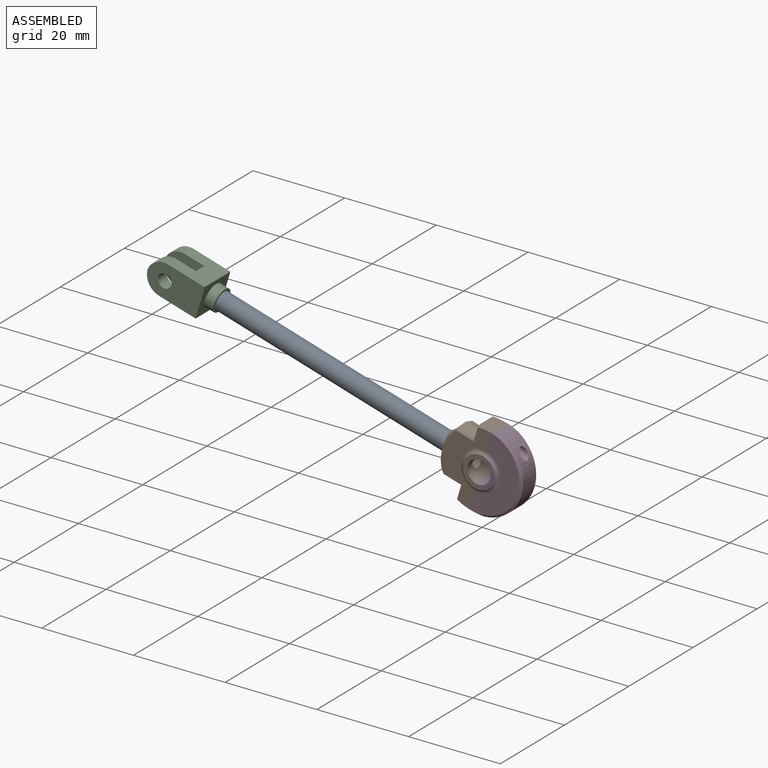
[diagram: assembled view]
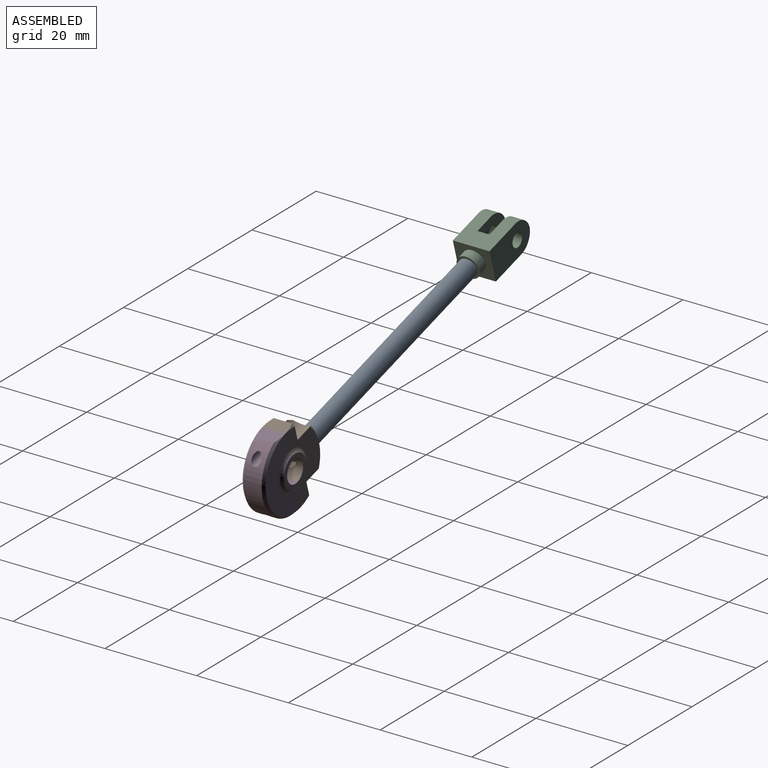
[diagram: assembled view, second angle]
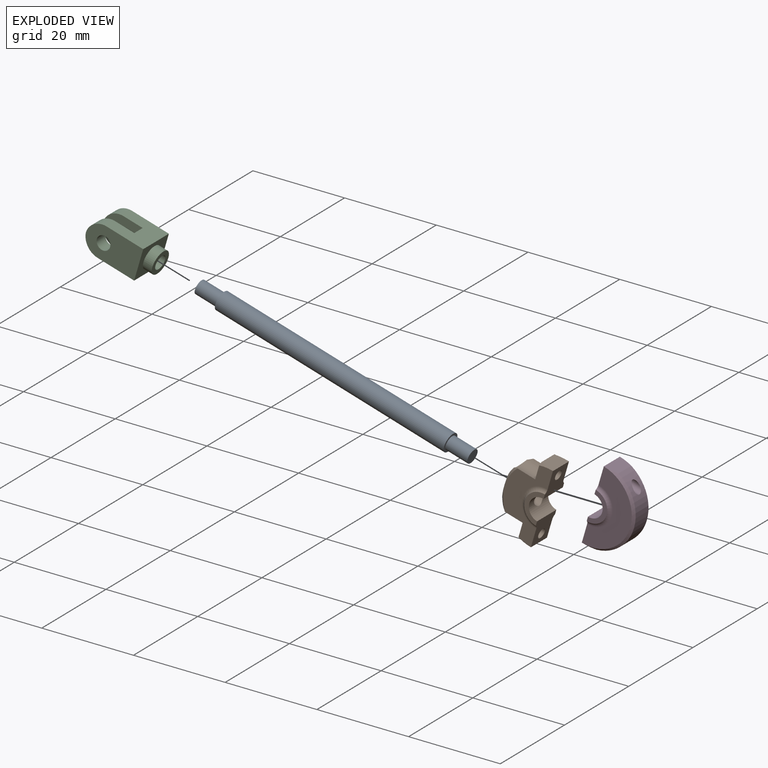
[diagram: exploded view]
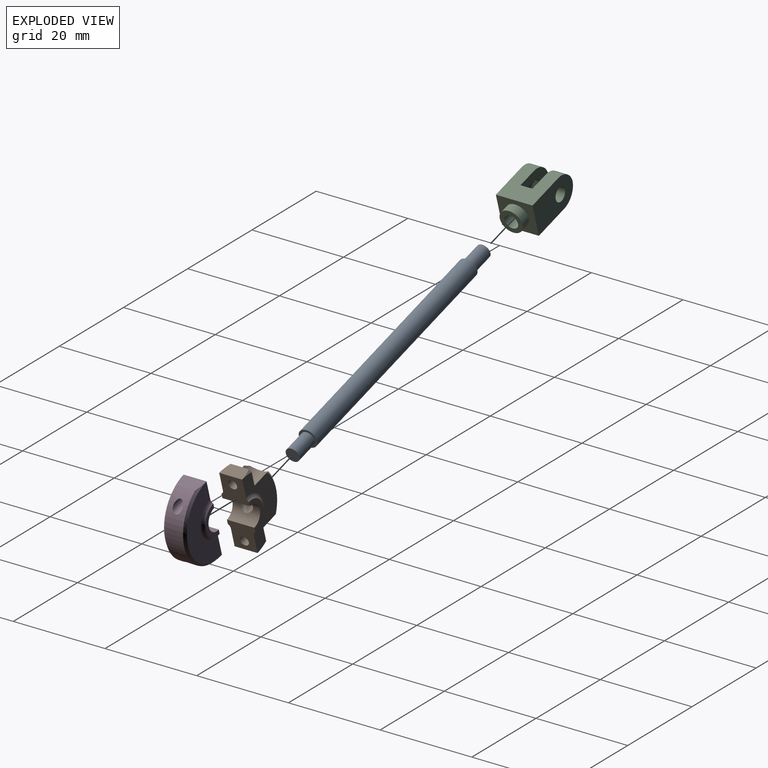
[diagram: exploded view, second angle]
ASSEMBLY  parts=4 mates=3
PART A: 7 faces, bbox 62x4x4 mm
  f0: cylinder r=1.5mm len=5mm, axis (-1,0,0), area 47.1mm2, adj f1,f4
  f1: plane 3x3mm, normal (1,0,0), area 7.1mm2, adj f0
  f2: cylinder r=2mm len=52mm, axis (1,0,0), area 653.5mm2, adj f3,f4
  f3: plane 4x4mm, normal (-1,0,0), area 5.5mm2, adj f2,f5
  f4: plane 4x4mm, normal (1,0,0), area 5.5mm2, adj f0,f2
  f5: cylinder r=1.5mm len=5mm, axis (1,0,0), area 47.1mm2, adj f3,f6
  f6: plane 3x3mm, normal (-1,0,0), area 7.1mm2, adj f5
PART B: 27 faces, bbox 9x7x18 mm
  f0: plane 17x8.5mm, normal (0,-1,0), area 68.3mm2, adj f3,f4,f8,f12,f13,f15,f16,f17
  f1: cylinder r=9mm len=4mm, axis (0,-1,0), area 5.3mm2, adj f3,f5,f17,f21
  f2: plane 17x8.5mm, normal (0,1,0), area 68.3mm2, adj f5,f6,f8,f12,f14,f15,f16,f17
  f3: cone r=9mm half-angle=45deg, axis (0,1,0), area 5.1mm2, adj f0,f1,f10,f15,f17,f21
  f4: cone r=9mm half-angle=45deg, axis (0,1,0), area 0.7mm2, adj f0,f9,f18
  f5: cone r=8.5mm half-angle=45deg, axis (0,-1,0), area 5.1mm2, adj f1,f2,f10,f15,f17,f21
  f6: cone r=8.5mm half-angle=45deg, axis (0,-1,0), area 0.7mm2, adj f2,f9,f18
  f7: cylinder r=2.5mm len=6mm, axis (0,-1,0), area 39.7mm2, adj f8,f12,f22,f23,f26
  f8: plane 6x6mm, normal (1,0,0), area 28.1mm2, adj f0,f2,f7,f9,f19,f22,f23,f24
  f9: plane 5x2.96mm, normal (0,0,-1), area 13.8mm2, adj f4,f6,f8,f18
  f10: cylinder r=9mm len=4mm, axis (0,-1,0), area 5.3mm2, adj f3,f5,f15,f21
  f11: plane 5x2.96mm, normal (0,0,1), area 13.8mm2, adj f12,f13,f14,f16
  f12: plane 6x6mm, normal (1,0,0), area 28.1mm2, adj f0,f2,f7,f11,f20,f22,f23,f24
  f13: cone r=9mm half-angle=45deg, axis (0,1,0), area 0.7mm2, adj f0,f11,f16
  f14: cone r=8.5mm half-angle=45deg, axis (0,-1,0), area 0.7mm2, adj f2,f11,f16
  f15: cylinder r=3mm len=5.33mm, axis (1,0,0), area 29.7mm2, adj f0,f2,f3,f5,f10,f16
  f16: plane 5.01x5.01mm, normal (-1,0,0), area 19.6mm2, adj f0,f2,f11,f13,f14,f15,f20
  f17: cylinder r=3mm len=5.33mm, axis (1,0,0), area 29.7mm2, adj f0,f1,f2,f3,f5,f18
  f18: plane 5.01x5.01mm, normal (-1,0,0), area 19.6mm2, adj f0,f2,f4,f6,f9,f17,f19
  f19: cylinder r=1mm len=2.96mm, axis (-1,0,0), area 18.6mm2, adj f8,f18
  f20: cylinder r=1mm len=2.96mm, axis (-1,0,0), area 18.6mm2, adj f12,f16
  f21: plane 5.01x4.72mm, normal (-1,0,0), area 15.3mm2, adj f1,f3,f5,f10,f26
  f22: plane 7x3.5mm, normal (0,-1,0), area 9.4mm2, adj f7,f8,f12,f25
  f23: plane 7x3.5mm, normal (0,1,0), area 9.4mm2, adj f7,f8,f12,f24
  f24: torus R=4.37mm, axis (0,1,0), area 12.8mm2, adj f2,f8,f12,f23
  f25: torus R=4.37mm, axis (0,1,0), area 12.8mm2, adj f0,f8,f12,f22
  f26: cylinder r=1.5mm len=6.65mm, axis (-1,0,0), area 60.2mm2, adj f7,f21
PART C: 20 faces, bbox 14x8x7 mm
  f0: plane 2.75x2.6mm, normal (-1,0,0), area 5.8mm2, adj f10,f15,f16,f19
  f1: plane 2.75x2.6mm, normal (-1,0,0), area 5.8mm2, adj f8,f15,f16,f19
  f2: cylinder r=1.5mm len=3mm, axis (0,-1,0), area 25.4mm2, adj f7,f15
  f3: cylinder r=3.7mm len=3.69mm, axis (0,1,0), area 15.2mm2, adj f4,f7,f10,f15
  f4: cylinder r=3.7mm len=3.69mm, axis (0,-1,0), area 15.2mm2, adj f3,f7,f8,f15
  f5: cylinder r=2.5mm len=5mm, axis (1,0,0), area 31.4mm2, adj f6,f11
  f6: plane 5x5mm, normal (1,0,0), area 12.6mm2, adj f5,f19
  f7: plane 11.99x7mm, normal (0,-1,0), area 71.1mm2, adj f2,f3,f4,f8,f10,f11
  f8: plane 8.3x8mm, normal (0,0,1), area 55.2mm2, adj f1,f4,f7,f9,f11,f14,f15,f16
  f9: plane 11.99x7mm, normal (0,1,0), area 71.1mm2, adj f8,f10,f11,f12,f13,f14
  f10: plane 8.3x8mm, normal (0,0,-1), area 55.2mm2, adj f0,f3,f7,f9,f11,f13,f15,f16
  f11: plane 8x7mm, normal (1,0,0), area 36.4mm2, adj f5,f7,f8,f9,f10
  f12: cylinder r=1.5mm len=3mm, axis (0,-1,0), area 25.4mm2, adj f9,f16
  f13: cylinder r=3.7mm len=3.69mm, axis (0,1,0), area 15.2mm2, adj f9,f10,f14,f16
  f14: cylinder r=3.7mm len=3.69mm, axis (0,-1,0), area 15.2mm2, adj f8,f9,f13,f16
  f15: plane 8x7mm, normal (0,1,0), area 43.1mm2, adj f0,f1,f2,f3,f4,f8,f10,f18
  f16: plane 8x7mm, normal (0,-1,0), area 43.1mm2, adj f0,f1,f8,f10,f12,f13,f14,f17
  f17: plane 1.5x0.2mm, normal (1,0,0), area 0.2mm2, adj f16,f19
  f18: plane 1.5x0.2mm, normal (1,0,0), area 0.2mm2, adj f15,f19
  f19: cylinder r=1.5mm len=5.99mm, axis (1,0,0), area 56.5mm2, adj f0,f1,f6,f17,f18
PART D: 16 faces, bbox 9x7x18 mm
  f0: cylinder r=9mm len=17mm, axis (0,-1,0), area 79.8mm2, adj f2,f3,f8,f9,f10,f11
  f1: plane 6x6mm, normal (-1,0,0), area 28.1mm2, adj f2,f5,f6,f7,f9,f12,f13,f14
  f2: plane 5x2.96mm, normal (0,0,1), area 13.8mm2, adj f0,f1,f10,f11
  f3: plane 5x2.96mm, normal (0,0,-1), area 13.8mm2, adj f0,f4,f10,f11
  f4: plane 6x6mm, normal (-1,0,0), area 28.1mm2, adj f3,f5,f6,f7,f8,f12,f13,f14
  f5: cylinder r=2.5mm len=6mm, axis (0,-1,0), area 47.1mm2, adj f1,f4,f12,f13
  f6: plane 17x8.5mm, normal (0,1,0), area 83.5mm2, adj f1,f4,f10,f14
  f7: plane 17x8.5mm, normal (0,-1,0), area 83.5mm2, adj f1,f4,f11,f15
  f8: cylinder r=1mm len=7.12mm, axis (-1,0,0), area 38.6mm2, adj f0,f4
  f9: cylinder r=1mm len=7.12mm, axis (-1,0,0), area 38.6mm2, adj f0,f1
  f10: cone r=8.5mm half-angle=45deg, axis (0,-1,0), area 16.6mm2, adj f0,f2,f3,f6
  f11: cone r=9mm half-angle=45deg, axis (0,1,0), area 16.6mm2, adj f0,f2,f3,f7
  f12: plane 7x3.5mm, normal (0,-1,0), area 9.4mm2, adj f1,f4,f5,f15
  f13: plane 7x3.5mm, normal (0,1,0), area 9.4mm2, adj f1,f4,f5,f14
  f14: torus R=4.37mm, axis (0,1,0), area 12.8mm2, adj f1,f4,f6,f13
  f15: torus R=4.37mm, axis (0,1,0), area 12.8mm2, adj f1,f4,f7,f12
PLACE A rot(axis=(0,1,0),16.4deg) t=(-13.86,-24.71,23.96)mm
PLACE B rot(axis=(0,1,0),16.4deg) t=(-13.86,-24.71,23.96)mm
PLACE C rot(axis=(0,1,0),16.4deg) t=(-13.86,-24.71,23.96)mm
PLACE D rot(axis=(0,1,0),16.4deg) t=(-13.86,-24.71,23.96)mm
MATE fastened B.f1 <-> D.f0  axis (0,-1,0) through (-17.39,15.29,11.97)mm
MATE fastened B.f26 <-> A.f0  axis (-0.96,0,0.28) through (-25.68,18.29,14.41)mm
MATE fastened A.f0 <-> C.f5  axis (0.96,0,-0.28) through (-75.57,18.29,29.1)mm
